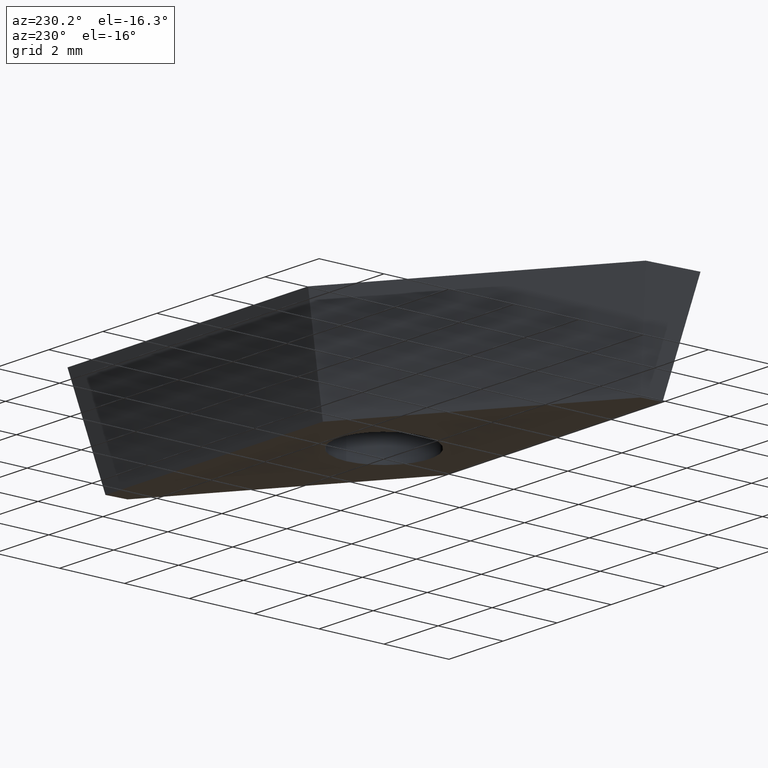
[diagram: clean part render]
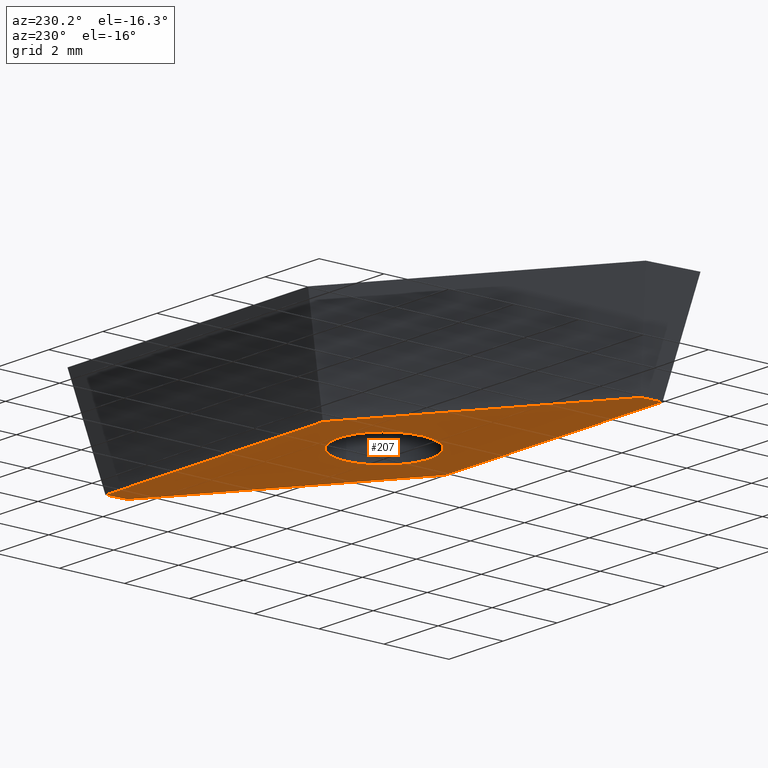
[diagram: same view with one face highlighted and labeled with its STEP entity id]
A machine part, auxiliary view. The second image highlights one B-rep face of the part: STEP entity #207.
In plain terms, the highlighted planar face has unit normal (0, 0, -1).
Its self-contained STEP definition (entity closure, byte-faithful):
#1 = VECTOR ( 'NONE', #59, 1000.000000000000000 ) ;
#3 = LINE ( 'NONE', #60, #1 ) ;
#6 = EDGE_CURVE ( 'NONE', #285, #330, #196, .T. ) ;
#10 = VERTEX_POINT ( 'NONE', #113 ) ;
#28 = VECTOR ( 'NONE', #166, 1000.000000000000000 ) ;
#31 = CARTESIAN_POINT ( 'NONE',  ( 7.283376349052109500, 3.218118526079754900, -3.180000000000000200 ) ) ;
#33 = LINE ( 'NONE', #107, #28 ) ;
#51 = VECTOR ( 'NONE', #82, 1000.000000000000100 ) ;
#59 = DIRECTION ( 'NONE',  ( 0.8191520442889951300, 0.5735764363510412700, 0.0000000000000000000 ) ) ;
#60 = CARTESIAN_POINT ( 'NONE',  ( 7.433744630409206500, 2.083801351424741500, -3.180000000000000200 ) ) ;
#74 = CARTESIAN_POINT ( 'NONE',  ( 0.8061782088420801400, -2.556870616942053400, -3.180000000000000200 ) ) ;
#82 = DIRECTION ( 'NONE',  ( 0.06975647374412545500, 0.9975640502598242000, 0.0000000000000000000 ) ) ;
#93 = CARTESIAN_POINT ( 'NONE',  ( 0.0000000000000000000, 0.0000000000000000000, -3.180000000000000200 ) ) ;
#99 = CARTESIAN_POINT ( 'NONE',  ( -7.283376349052111300, -3.218118526079755300, -3.180000000000000200 ) ) ;
#106 = CARTESIAN_POINT ( 'NONE',  ( 1.399999999999999900, 0.0000000000000000000, -3.180000000000000200 ) ) ;
#107 = CARTESIAN_POINT ( 'NONE',  ( -1.001073654690764600, 2.556870616942053400, -3.180000000000000200 ) ) ;
#109 = DIRECTION ( 'NONE',  ( 1.000000000000000000, 9.744461978823350000E-017, 0.0000000000000000000 ) ) ;
#113 = CARTESIAN_POINT ( 'NONE',  ( -1.399999999999999900, 1.714505518806294100E-016, -3.180000000000000200 ) ) ;
#116 = CARTESIAN_POINT ( 'NONE',  ( 1.001073654690762600, -2.556870616942053400, -3.180000000000000200 ) ) ;
#121 = EDGE_CURVE ( 'NONE', #243, #285, #182, .T. ) ;
#129 = LINE ( 'NONE', #31, #51 ) ;
#139 = CARTESIAN_POINT ( 'NONE',  ( -7.433744630409207400, -2.083801351424743800, -3.180000000000000200 ) ) ;
#142 = CARTESIAN_POINT ( 'NONE',  ( -0.8061782088420828000, 2.556870616942053400, -3.180000000000000200 ) ) ;
#147 = PLANE ( 'NONE',  #352 ) ;
#153 = DIRECTION ( 'NONE',  ( -0.8191520442889950200, -0.5735764363510415000, 0.0000000000000000000 ) ) ;
#159 = LINE ( 'NONE', #139, #167 ) ;
#163 = DIRECTION ( 'NONE',  ( -1.000000000000000000, 0.0000000000000000000, -0.0000000000000000000 ) ) ;
#165 = FACE_OUTER_BOUND ( 'NONE', #310, .T. ) ;
#166 = DIRECTION ( 'NONE',  ( -1.000000000000000000, -9.744461978823350000E-017, 0.0000000000000000000 ) ) ;
#167 = VECTOR ( 'NONE', #153, 1000.000000000000000 ) ;
#171 = CIRCLE ( 'NONE', #205, 1.399999999999999900 ) ;
#175 = FACE_BOUND ( 'NONE', #304, .T. ) ;
#176 = VECTOR ( 'NONE', #200, 1000.000000000000100 ) ;
#177 = EDGE_CURVE ( 'NONE', #324, #10, #180, .T. ) ;
#180 = CIRCLE ( 'NONE', #181, 1.399999999999999900 ) ;
#181 = AXIS2_PLACEMENT_3D ( 'NONE', #241, #237, #245 ) ;
#182 = LINE ( 'NONE', #99, #176 ) ;
#193 = VECTOR ( 'NONE', #109, 1000.000000000000000 ) ;
#195 = CARTESIAN_POINT ( 'NONE',  ( 7.192231910145610000, 1.914692324122640600, -3.180000000000000200 ) ) ;
#196 = LINE ( 'NONE', #116, #193 ) ;
#197 = EDGE_CURVE ( 'NONE', #10, #324, #171, .T. ) ;
#200 = DIRECTION ( 'NONE',  ( -0.06975647374412608000, -0.9975640502598242000, 0.0000000000000000000 ) ) ;
#205 = AXIS2_PLACEMENT_3D ( 'NONE', #333, #334, #336 ) ;
#207 = ADVANCED_FACE ( 'NONE', ( #175, #165 ), #147, .T. ) ;
#208 = EDGE_CURVE ( 'NONE', #212, #243, #159, .T. ) ;
#212 = VERTEX_POINT ( 'NONE', #142 ) ;
#232 = DIRECTION ( 'NONE',  ( 0.0000000000000000000, 0.0000000000000000000, -1.000000000000000000 ) ) ;
#237 = DIRECTION ( 'NONE',  ( 0.0000000000000000000, 0.0000000000000000000, 1.000000000000000000 ) ) ;
#241 = CARTESIAN_POINT ( 'NONE',  ( 0.0000000000000000000, 0.0000000000000000000, -3.180000000000000200 ) ) ;
#243 = VERTEX_POINT ( 'NONE', #300 ) ;
#245 = DIRECTION ( 'NONE',  ( 1.000000000000000000, 0.0000000000000000000, 0.0000000000000000000 ) ) ;
#256 = ORIENTED_EDGE ( 'NONE', *, *, #177, .T. ) ;
#257 = ORIENTED_EDGE ( 'NONE', *, *, #197, .T. ) ;
#259 = ORIENTED_EDGE ( 'NONE', *, *, #121, .F. ) ;
#260 = ORIENTED_EDGE ( 'NONE', *, *, #208, .F. ) ;
#261 = ORIENTED_EDGE ( 'NONE', *, *, #323, .F. ) ;
#262 = ORIENTED_EDGE ( 'NONE', *, *, #313, .F. ) ;
#263 = ORIENTED_EDGE ( 'NONE', *, *, #349, .F. ) ;
#266 = ORIENTED_EDGE ( 'NONE', *, *, #6, .F. ) ;
#285 = VERTEX_POINT ( 'NONE', #298 ) ;
#292 = VERTEX_POINT ( 'NONE', #315 ) ;
#298 = CARTESIAN_POINT ( 'NONE',  ( -7.237137390861799500, -2.556870616942054300, -3.180000000000000200 ) ) ;
#300 = CARTESIAN_POINT ( 'NONE',  ( -7.192231910145610900, -1.914692324122642800, -3.180000000000000200 ) ) ;
#304 = EDGE_LOOP ( 'NONE', ( #256, #257 ) ) ;
#306 = VERTEX_POINT ( 'NONE', #195 ) ;
#310 = EDGE_LOOP ( 'NONE', ( #259, #260, #261, #262, #263, #266 ) ) ;
#313 = EDGE_CURVE ( 'NONE', #306, #292, #129, .T. ) ;
#315 = CARTESIAN_POINT ( 'NONE',  ( 7.237137390861797700, 2.556870616942054300, -3.180000000000000200 ) ) ;
#323 = EDGE_CURVE ( 'NONE', #292, #212, #33, .T. ) ;
#324 = VERTEX_POINT ( 'NONE', #106 ) ;
#330 = VERTEX_POINT ( 'NONE', #74 ) ;
#333 = CARTESIAN_POINT ( 'NONE',  ( 0.0000000000000000000, 0.0000000000000000000, -3.180000000000000200 ) ) ;
#334 = DIRECTION ( 'NONE',  ( 0.0000000000000000000, 0.0000000000000000000, 1.000000000000000000 ) ) ;
#336 = DIRECTION ( 'NONE',  ( 1.000000000000000000, 0.0000000000000000000, 0.0000000000000000000 ) ) ;
#349 = EDGE_CURVE ( 'NONE', #330, #306, #3, .T. ) ;
#352 = AXIS2_PLACEMENT_3D ( 'NONE', #93, #232, #163 ) ;